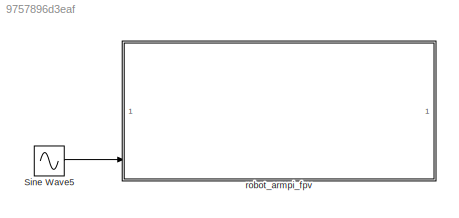
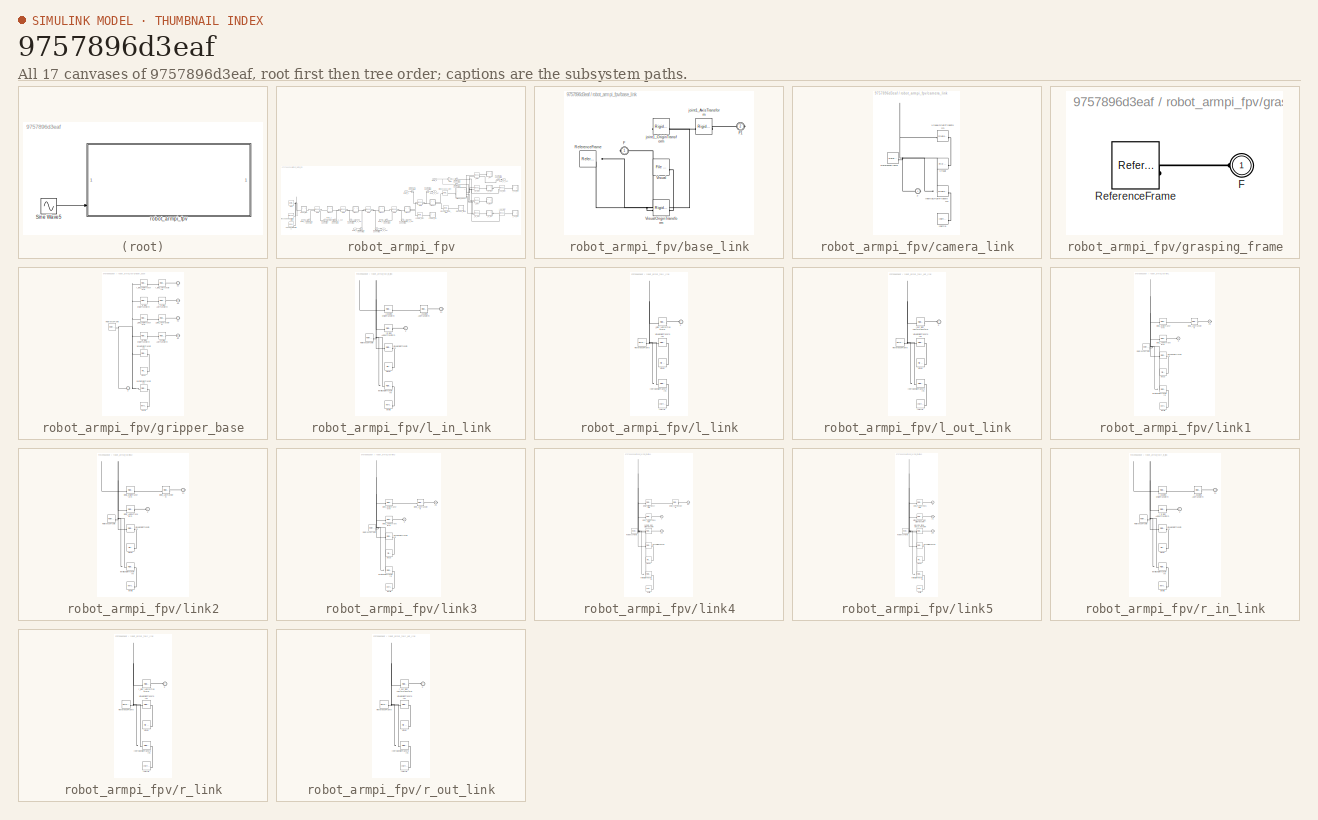
[diagram: thumbnail index - all 17 canvases of the model, root first then tree order]
MODEL slx_9757896d3eaf
KIND model
CONFIG AbsTol = auto
CONFIG EnableMultiTasking = off
CONFIG FixedStep = auto
CONFIG MaxStep = auto
CONFIG MinStep = auto
CONFIG RelTol = 1e-3
CONFIG SampleTimeConstraint = Unconstrained
CONFIG SolverName = VariableStepAuto
CONFIG StartTime = 0.0
CONFIG StopTime = 10.0
BLOCK [Sin] Sine Wave5
  Amplitude = .5*pi
  Frequency = .2*pi
  SampleTime = 0
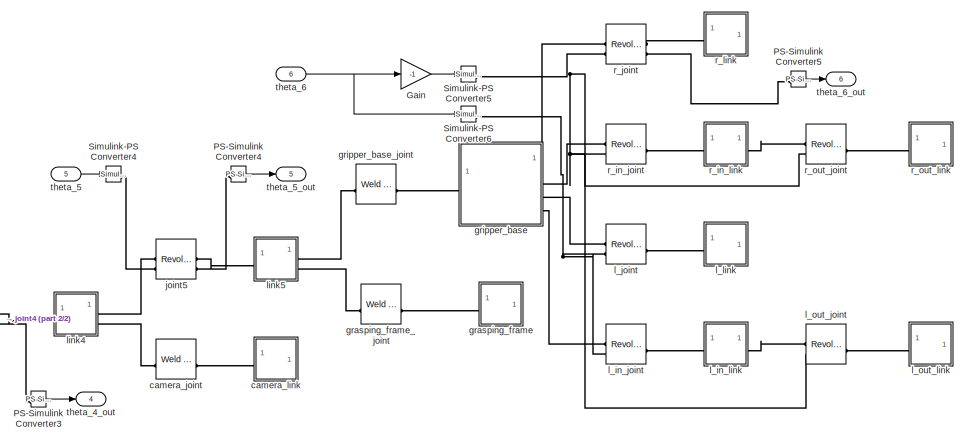
[diagram: robot_armpi_fpv - part 1/2, right side, full height]
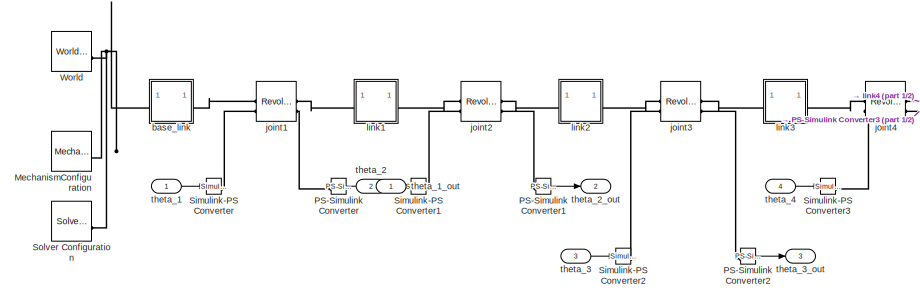
[diagram: robot_armpi_fpv - part 2/2, bottom left region]
BLOCK [SubSystem] robot_armpi_fpv
BLOCK [Gain] robot_armpi_fpv/Gain
  Gain = -1
BLOCK [Reference] robot_armpi_fpv/MechanismConfiguration  REF=sm_lib/Utilities/Mechanism
Configuration
  SourceBlock = sm_lib/Utilities/Mechanism\nConfiguration
  SourceType = Mechanism\nConfiguration
BLOCK [Reference] robot_armpi_fpv/PS-Simulink Converter  REF=nesl_utility/PS-Simulink
Converter
  SourceBlock = nesl_utility/PS-Simulink\nConverter
  SourceType = PS-Simulink\nConverter
BLOCK [Reference] robot_armpi_fpv/PS-Simulink Converter1  REF=nesl_utility/PS-Simulink
Converter
  SourceBlock = nesl_utility/PS-Simulink\nConverter
  SourceType = PS-Simulink\nConverter
BLOCK [Reference] robot_armpi_fpv/PS-Simulink Converter2  REF=nesl_utility/PS-Simulink
Converter
  SourceBlock = nesl_utility/PS-Simulink\nConverter
  SourceType = PS-Simulink\nConverter
BLOCK [Reference] robot_armpi_fpv/PS-Simulink Converter3  REF=nesl_utility/PS-Simulink
Converter
  SourceBlock = nesl_utility/PS-Simulink\nConverter
  SourceType = PS-Simulink\nConverter
BLOCK [Reference] robot_armpi_fpv/PS-Simulink Converter4  REF=nesl_utility/PS-Simulink
Converter
  SourceBlock = nesl_utility/PS-Simulink\nConverter
  SourceType = PS-Simulink\nConverter
BLOCK [Reference] robot_armpi_fpv/PS-Simulink Converter5  REF=nesl_utility/PS-Simulink
Converter
  SourceBlock = nesl_utility/PS-Simulink\nConverter
  SourceType = PS-Simulink\nConverter
BLOCK [Reference] robot_armpi_fpv/Simulink-PS Converter  REF=nesl_utility/Simulink-PS
Converter
  SourceBlock = nesl_utility/Simulink-PS\nConverter
  SourceType = Simulink-PS\nConverter
BLOCK [Reference] robot_armpi_fpv/Simulink-PS Converter1  REF=nesl_utility/Simulink-PS
Converter
  SourceBlock = nesl_utility/Simulink-PS\nConverter
  SourceType = Simulink-PS\nConverter
BLOCK [Reference] robot_armpi_fpv/Simulink-PS Converter2  REF=nesl_utility/Simulink-PS
Converter
  SourceBlock = nesl_utility/Simulink-PS\nConverter
  SourceType = Simulink-PS\nConverter
BLOCK [Reference] robot_armpi_fpv/Simulink-PS Converter3  REF=nesl_utility/Simulink-PS
Converter
  SourceBlock = nesl_utility/Simulink-PS\nConverter
  SourceType = Simulink-PS\nConverter
BLOCK [Reference] robot_armpi_fpv/Simulink-PS Converter4  REF=nesl_utility/Simulink-PS
Converter
  SourceBlock = nesl_utility/Simulink-PS\nConverter
  SourceType = Simulink-PS\nConverter
BLOCK [Reference] robot_armpi_fpv/Simulink-PS Converter5  REF=nesl_utility/Simulink-PS
Converter
  SourceBlock = nesl_utility/Simulink-PS\nConverter
  SourceType = Simulink-PS\nConverter
BLOCK [Reference] robot_armpi_fpv/Simulink-PS Converter6  REF=nesl_utility/Simulink-PS
Converter
  SourceBlock = nesl_utility/Simulink-PS\nConverter
  SourceType = Simulink-PS\nConverter
BLOCK [Reference] robot_armpi_fpv/Solver Configuration  REF=nesl_utility/Solver
Configuration
  SourceBlock = nesl_utility/Solver\nConfiguration
  SourceType = Solver\nConfiguration
BLOCK [Reference] robot_armpi_fpv/World  REF=sm_lib/Frames and
Transforms/World Frame
  SourceBlock = sm_lib/Frames and\nTransforms/World Frame
  SourceType = World Frame
BLOCK [SubSystem] robot_armpi_fpv/base_link
BLOCK [PMIOPort] robot_armpi_fpv/base_link/F
  Side = Left
BLOCK [PMIOPort] robot_armpi_fpv/base_link/F1
  Port = 2
  Side = Right
BLOCK [Reference] robot_armpi_fpv/base_link/ReferenceFrame  REF=sm_lib/Frames and
Transforms/Reference
Frame
  SourceBlock = sm_lib/Frames and\nTransforms/Reference\nFrame
  SourceType = Reference\nFrame
BLOCK [Reference] robot_armpi_fpv/base_link/Visual  REF=sm_lib/Body Elements/File Solid
  SourceBlock = sm_lib/Body Elements/File Solid
  SourceType = File Solid
BLOCK [Reference] robot_armpi_fpv/base_link/VisualOriginTransform  REF=sm_lib/Frames and
Transforms/Rigid
Transform
  SourceBlock = sm_lib/Frames and\nTransforms/Rigid\nTransform
  SourceType = Rigid\nTransform
BLOCK [Reference] robot_armpi_fpv/base_link/joint1_AxisTransform  REF=sm_lib/Frames and
Transforms/Rigid
Transform
  SourceBlock = sm_lib/Frames and\nTransforms/Rigid\nTransform
  SourceType = Rigid\nTransform
BLOCK [Reference] robot_armpi_fpv/base_link/joint1_OriginTransform  REF=sm_lib/Frames and
Transforms/Rigid
Transform
  SourceBlock = sm_lib/Frames and\nTransforms/Rigid\nTransform
  SourceType = Rigid\nTransform
BLOCK [Reference] robot_armpi_fpv/camera_joint  REF=sm_lib/Joints/Weld Joint
  SourceBlock = sm_lib/Joints/Weld Joint
  SourceType = Weld Joint
BLOCK [SubSystem] robot_armpi_fpv/camera_link
BLOCK [PMIOPort] robot_armpi_fpv/camera_link/F
  Side = Left
BLOCK [Reference] robot_armpi_fpv/camera_link/Inertia  REF=sm_lib/Body Elements/Inertia
  SourceBlock = sm_lib/Body Elements/Inertia
  SourceType = Inertia
BLOCK [Reference] robot_armpi_fpv/camera_link/InertiaOriginTransform  REF=sm_lib/Frames and
Transforms/Rigid
Transform
  SourceBlock = sm_lib/Frames and\nTransforms/Rigid\nTransform
  SourceType = Rigid\nTransform
BLOCK [Reference] robot_armpi_fpv/camera_link/ReferenceFrame  REF=sm_lib/Frames and
Transforms/Reference
Frame
  SourceBlock = sm_lib/Frames and\nTransforms/Reference\nFrame
  SourceType = Reference\nFrame
BLOCK [Reference] robot_armpi_fpv/camera_link/Visual  REF=sm_lib/Body Elements/File Solid
  SourceBlock = sm_lib/Body Elements/File Solid
  SourceType = File Solid
BLOCK [Reference] robot_armpi_fpv/camera_link/VisualOriginTransform  REF=sm_lib/Frames and
Transforms/Rigid
Transform
  SourceBlock = sm_lib/Frames and\nTransforms/Rigid\nTransform
  SourceType = Rigid\nTransform
BLOCK [SubSystem] robot_armpi_fpv/grasping_frame
BLOCK [PMIOPort] robot_armpi_fpv/grasping_frame/F
  Side = Left
BLOCK [Reference] robot_armpi_fpv/grasping_frame/ReferenceFrame  REF=sm_lib/Frames and
Transforms/Reference
Frame
  SourceBlock = sm_lib/Frames and\nTransforms/Reference\nFrame
  SourceType = Reference\nFrame
BLOCK [Reference] robot_armpi_fpv/grasping_frame_joint  REF=sm_lib/Joints/Weld Joint
  SourceBlock = sm_lib/Joints/Weld Joint
  SourceType = Weld Joint
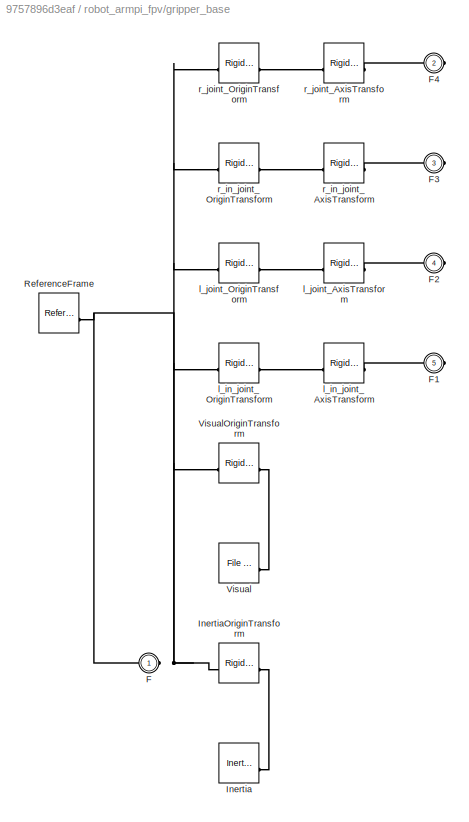
BLOCK [SubSystem] robot_armpi_fpv/gripper_base
BLOCK [PMIOPort] robot_armpi_fpv/gripper_base/F
  Side = Left
BLOCK [PMIOPort] robot_armpi_fpv/gripper_base/F1
  Port = 5
  Side = Right
BLOCK [PMIOPort] robot_armpi_fpv/gripper_base/F2
  Port = 4
  Side = Right
BLOCK [PMIOPort] robot_armpi_fpv/gripper_base/F3
  Port = 3
  Side = Right
BLOCK [PMIOPort] robot_armpi_fpv/gripper_base/F4
  Port = 2
  Side = Right
BLOCK [Reference] robot_armpi_fpv/gripper_base/Inertia  REF=sm_lib/Body Elements/Inertia
  SourceBlock = sm_lib/Body Elements/Inertia
  SourceType = Inertia
BLOCK [Reference] robot_armpi_fpv/gripper_base/InertiaOriginTransform  REF=sm_lib/Frames and
Transforms/Rigid
Transform
  SourceBlock = sm_lib/Frames and\nTransforms/Rigid\nTransform
  SourceType = Rigid\nTransform
BLOCK [Reference] robot_armpi_fpv/gripper_base/ReferenceFrame  REF=sm_lib/Frames and
Transforms/Reference
Frame
  SourceBlock = sm_lib/Frames and\nTransforms/Reference\nFrame
  SourceType = Reference\nFrame
BLOCK [Reference] robot_armpi_fpv/gripper_base/Visual  REF=sm_lib/Body Elements/File Solid
  SourceBlock = sm_lib/Body Elements/File Solid
  SourceType = File Solid
BLOCK [Reference] robot_armpi_fpv/gripper_base/VisualOriginTransform  REF=sm_lib/Frames and
Transforms/Rigid
Transform
  SourceBlock = sm_lib/Frames and\nTransforms/Rigid\nTransform
  SourceType = Rigid\nTransform
BLOCK [Reference] robot_armpi_fpv/gripper_base/l_in_joint_AxisTransform  REF=sm_lib/Frames and
Transforms/Rigid
Transform
  SourceBlock = sm_lib/Frames and\nTransforms/Rigid\nTransform
  SourceType = Rigid\nTransform
BLOCK [Reference] robot_armpi_fpv/gripper_base/l_in_joint_OriginTransform  REF=sm_lib/Frames and
Transforms/Rigid
Transform
  SourceBlock = sm_lib/Frames and\nTransforms/Rigid\nTransform
  SourceType = Rigid\nTransform
BLOCK [Reference] robot_armpi_fpv/gripper_base/l_joint_AxisTransform  REF=sm_lib/Frames and
Transforms/Rigid
Transform
  SourceBlock = sm_lib/Frames and\nTransforms/Rigid\nTransform
  SourceType = Rigid\nTransform
BLOCK [Reference] robot_armpi_fpv/gripper_base/l_joint_OriginTransform  REF=sm_lib/Frames and
Transforms/Rigid
Transform
  SourceBlock = sm_lib/Frames and\nTransforms/Rigid\nTransform
  SourceType = Rigid\nTransform
BLOCK [Reference] robot_armpi_fpv/gripper_base/r_in_joint_AxisTransform  REF=sm_lib/Frames and
Transforms/Rigid
Transform
  SourceBlock = sm_lib/Frames and\nTransforms/Rigid\nTransform
  SourceType = Rigid\nTransform
BLOCK [Reference] robot_armpi_fpv/gripper_base/r_in_joint_OriginTransform  REF=sm_lib/Frames and
Transforms/Rigid
Transform
  SourceBlock = sm_lib/Frames and\nTransforms/Rigid\nTransform
  SourceType = Rigid\nTransform
BLOCK [Reference] robot_armpi_fpv/gripper_base/r_joint_AxisTransform  REF=sm_lib/Frames and
Transforms/Rigid
Transform
  SourceBlock = sm_lib/Frames and\nTransforms/Rigid\nTransform
  SourceType = Rigid\nTransform
BLOCK [Reference] robot_armpi_fpv/gripper_base/r_joint_OriginTransform  REF=sm_lib/Frames and
Transforms/Rigid
Transform
  SourceBlock = sm_lib/Frames and\nTransforms/Rigid\nTransform
  SourceType = Rigid\nTransform
BLOCK [Reference] robot_armpi_fpv/gripper_base_joint  REF=sm_lib/Joints/Weld Joint
  SourceBlock = sm_lib/Joints/Weld Joint
  SourceType = Weld Joint
BLOCK [Reference] robot_armpi_fpv/joint1  REF=sm_lib/Joints/Revolute Joint
  SourceBlock = sm_lib/Joints/Revolute Joint
  SourceType = Revolute Joint
BLOCK [Reference] robot_armpi_fpv/joint2  REF=sm_lib/Joints/Revolute Joint
  SourceBlock = sm_lib/Joints/Revolute Joint
  SourceType = Revolute Joint
BLOCK [Reference] robot_armpi_fpv/joint3  REF=sm_lib/Joints/Revolute Joint
  SourceBlock = sm_lib/Joints/Revolute Joint
  SourceType = Revolute Joint
BLOCK [Reference] robot_armpi_fpv/joint4  REF=sm_lib/Joints/Revolute Joint
  SourceBlock = sm_lib/Joints/Revolute Joint
  SourceType = Revolute Joint
BLOCK [Reference] robot_armpi_fpv/joint5  REF=sm_lib/Joints/Revolute Joint
  SourceBlock = sm_lib/Joints/Revolute Joint
  SourceType = Revolute Joint
BLOCK [Reference] robot_armpi_fpv/l_in_joint  REF=sm_lib/Joints/Revolute Joint
  SourceBlock = sm_lib/Joints/Revolute Joint
  SourceType = Revolute Joint
BLOCK [SubSystem] robot_armpi_fpv/l_in_link
BLOCK [PMIOPort] robot_armpi_fpv/l_in_link/F
  Side = Left
BLOCK [PMIOPort] robot_armpi_fpv/l_in_link/F1
  Port = 2
  Side = Right
BLOCK [Reference] robot_armpi_fpv/l_in_link/Inertia  REF=sm_lib/Body Elements/Inertia
  SourceBlock = sm_lib/Body Elements/Inertia
  SourceType = Inertia
BLOCK [Reference] robot_armpi_fpv/l_in_link/InertiaOriginTransform  REF=sm_lib/Frames and
Transforms/Rigid
Transform
  SourceBlock = sm_lib/Frames and\nTransforms/Rigid\nTransform
  SourceType = Rigid\nTransform
BLOCK [Reference] robot_armpi_fpv/l_in_link/ReferenceFrame  REF=sm_lib/Frames and
Transforms/Reference
Frame
  SourceBlock = sm_lib/Frames and\nTransforms/Reference\nFrame
  SourceType = Reference\nFrame
BLOCK [Reference] robot_armpi_fpv/l_in_link/Visual  REF=sm_lib/Body Elements/File Solid
  SourceBlock = sm_lib/Body Elements/File Solid
  SourceType = File Solid
BLOCK [Reference] robot_armpi_fpv/l_in_link/VisualOriginTransform  REF=sm_lib/Frames and
Transforms/Rigid
Transform
  SourceBlock = sm_lib/Frames and\nTransforms/Rigid\nTransform
  SourceType = Rigid\nTransform
BLOCK [Reference] robot_armpi_fpv/l_in_link/l_in_joint_AxisInvTransform  REF=sm_lib/Frames and
Transforms/Rigid
Transform
  SourceBlock = sm_lib/Frames and\nTransforms/Rigid\nTransform
  SourceType = Rigid\nTransform
BLOCK [Reference] robot_armpi_fpv/l_in_link/l_out_joint_AxisTransform  REF=sm_lib/Frames and
Transforms/Rigid
Transform
  SourceBlock = sm_lib/Frames and\nTransforms/Rigid\nTransform
  SourceType = Rigid\nTransform
BLOCK [Reference] robot_armpi_fpv/l_in_link/l_out_joint_OriginTransform  REF=sm_lib/Frames and
Transforms/Rigid
Transform
  SourceBlock = sm_lib/Frames and\nTransforms/Rigid\nTransform
  SourceType = Rigid\nTransform
BLOCK [Reference] robot_armpi_fpv/l_joint  REF=sm_lib/Joints/Revolute Joint
  SourceBlock = sm_lib/Joints/Revolute Joint
  SourceType = Revolute Joint
BLOCK [SubSystem] robot_armpi_fpv/l_link
BLOCK [PMIOPort] robot_armpi_fpv/l_link/F
  Side = Left
BLOCK [Reference] robot_armpi_fpv/l_link/Inertia  REF=sm_lib/Body Elements/Inertia
  SourceBlock = sm_lib/Body Elements/Inertia
  SourceType = Inertia
BLOCK [Reference] robot_armpi_fpv/l_link/InertiaOriginTransform  REF=sm_lib/Frames and
Transforms/Rigid
Transform
  SourceBlock = sm_lib/Frames and\nTransforms/Rigid\nTransform
  SourceType = Rigid\nTransform
BLOCK [Reference] robot_armpi_fpv/l_link/ReferenceFrame  REF=sm_lib/Frames and
Transforms/Reference
Frame
  SourceBlock = sm_lib/Frames and\nTransforms/Reference\nFrame
  SourceType = Reference\nFrame
BLOCK [Reference] robot_armpi_fpv/l_link/Visual  REF=sm_lib/Body Elements/File Solid
  SourceBlock = sm_lib/Body Elements/File Solid
  SourceType = File Solid
BLOCK [Reference] robot_armpi_fpv/l_link/VisualOriginTransform  REF=sm_lib/Frames and
Transforms/Rigid
Transform
  SourceBlock = sm_lib/Frames and\nTransforms/Rigid\nTransform
  SourceType = Rigid\nTransform
BLOCK [Reference] robot_armpi_fpv/l_link/l_joint_AxisInvTransform  REF=sm_lib/Frames and
Transforms/Rigid
Transform
  SourceBlock = sm_lib/Frames and\nTransforms/Rigid\nTransform
  SourceType = Rigid\nTransform
BLOCK [Reference] robot_armpi_fpv/l_out_joint  REF=sm_lib/Joints/Revolute Joint
  SourceBlock = sm_lib/Joints/Revolute Joint
  SourceType = Revolute Joint
BLOCK [SubSystem] robot_armpi_fpv/l_out_link
BLOCK [PMIOPort] robot_armpi_fpv/l_out_link/F
  Side = Left
BLOCK [Reference] robot_armpi_fpv/l_out_link/Inertia  REF=sm_lib/Body Elements/Inertia
  SourceBlock = sm_lib/Body Elements/Inertia
  SourceType = Inertia
BLOCK [Reference] robot_armpi_fpv/l_out_link/InertiaOriginTransform  REF=sm_lib/Frames and
Transforms/Rigid
Transform
  SourceBlock = sm_lib/Frames and\nTransforms/Rigid\nTransform
  SourceType = Rigid\nTransform
BLOCK [Reference] robot_armpi_fpv/l_out_link/ReferenceFrame  REF=sm_lib/Frames and
Transforms/Reference
Frame
  SourceBlock = sm_lib/Frames and\nTransforms/Reference\nFrame
  SourceType = Reference\nFrame
BLOCK [Reference] robot_armpi_fpv/l_out_link/Visual  REF=sm_lib/Body Elements/File Solid
  SourceBlock = sm_lib/Body Elements/File Solid
  SourceType = File Solid
BLOCK [Reference] robot_armpi_fpv/l_out_link/VisualOriginTransform  REF=sm_lib/Frames and
Transforms/Rigid
Transform
  SourceBlock = sm_lib/Frames and\nTransforms/Rigid\nTransform
  SourceType = Rigid\nTransform
BLOCK [Reference] robot_armpi_fpv/l_out_link/l_out_joint_AxisInvTransform  REF=sm_lib/Frames and
Transforms/Rigid
Transform
  SourceBlock = sm_lib/Frames and\nTransforms/Rigid\nTransform
  SourceType = Rigid\nTransform
BLOCK [SubSystem] robot_armpi_fpv/link1
BLOCK [PMIOPort] robot_armpi_fpv/link1/F
  Side = Left
BLOCK [PMIOPort] robot_armpi_fpv/link1/F1
  Port = 2
  Side = Right
BLOCK [Reference] robot_armpi_fpv/link1/Inertia  REF=sm_lib/Body Elements/Inertia
  SourceBlock = sm_lib/Body Elements/Inertia
  SourceType = Inertia
BLOCK [Reference] robot_armpi_fpv/link1/InertiaOriginTransform  REF=sm_lib/Frames and
Transforms/Rigid
Transform
  SourceBlock = sm_lib/Frames and\nTransforms/Rigid\nTransform
  SourceType = Rigid\nTransform
BLOCK [Reference] robot_armpi_fpv/link1/ReferenceFrame  REF=sm_lib/Frames and
Transforms/Reference
Frame
  SourceBlock = sm_lib/Frames and\nTransforms/Reference\nFrame
  SourceType = Reference\nFrame
BLOCK [Reference] robot_armpi_fpv/link1/Visual  REF=sm_lib/Body Elements/File Solid
  SourceBlock = sm_lib/Body Elements/File Solid
  SourceType = File Solid
BLOCK [Reference] robot_armpi_fpv/link1/VisualOriginTransform  REF=sm_lib/Frames and
Transforms/Rigid
Transform
  SourceBlock = sm_lib/Frames and\nTransforms/Rigid\nTransform
  SourceType = Rigid\nTransform
BLOCK [Reference] robot_armpi_fpv/link1/joint1_AxisInvTransform  REF=sm_lib/Frames and
Transforms/Rigid
Transform
  SourceBlock = sm_lib/Frames and\nTransforms/Rigid\nTransform
  SourceType = Rigid\nTransform
BLOCK [Reference] robot_armpi_fpv/link1/joint2_AxisTransform  REF=sm_lib/Frames and
Transforms/Rigid
Transform
  SourceBlock = sm_lib/Frames and\nTransforms/Rigid\nTransform
  SourceType = Rigid\nTransform
BLOCK [Reference] robot_armpi_fpv/link1/joint2_OriginTransform  REF=sm_lib/Frames and
Transforms/Rigid
Transform
  SourceBlock = sm_lib/Frames and\nTransforms/Rigid\nTransform
  SourceType = Rigid\nTransform
BLOCK [SubSystem] robot_armpi_fpv/link2
BLOCK [PMIOPort] robot_armpi_fpv/link2/F
  Side = Left
BLOCK [PMIOPort] robot_armpi_fpv/link2/F1
  Port = 2
  Side = Right
BLOCK [Reference] robot_armpi_fpv/link2/Inertia  REF=sm_lib/Body Elements/Inertia
  SourceBlock = sm_lib/Body Elements/Inertia
  SourceType = Inertia
BLOCK [Reference] robot_armpi_fpv/link2/InertiaOriginTransform  REF=sm_lib/Frames and
Transforms/Rigid
Transform
  SourceBlock = sm_lib/Frames and\nTransforms/Rigid\nTransform
  SourceType = Rigid\nTransform
BLOCK [Reference] robot_armpi_fpv/link2/ReferenceFrame  REF=sm_lib/Frames and
Transforms/Reference
Frame
  SourceBlock = sm_lib/Frames and\nTransforms/Reference\nFrame
  SourceType = Reference\nFrame
BLOCK [Reference] robot_armpi_fpv/link2/Visual  REF=sm_lib/Body Elements/File Solid
  SourceBlock = sm_lib/Body Elements/File Solid
  SourceType = File Solid
BLOCK [Reference] robot_armpi_fpv/link2/VisualOriginTransform  REF=sm_lib/Frames and
Transforms/Rigid
Transform
  SourceBlock = sm_lib/Frames and\nTransforms/Rigid\nTransform
  SourceType = Rigid\nTransform
BLOCK [Reference] robot_armpi_fpv/link2/joint2_AxisInvTransform  REF=sm_lib/Frames and
Transforms/Rigid
Transform
  SourceBlock = sm_lib/Frames and\nTransforms/Rigid\nTransform
  SourceType = Rigid\nTransform
BLOCK [Reference] robot_armpi_fpv/link2/joint3_AxisTransform  REF=sm_lib/Frames and
Transforms/Rigid
Transform
  SourceBlock = sm_lib/Frames and\nTransforms/Rigid\nTransform
  SourceType = Rigid\nTransform
BLOCK [Reference] robot_armpi_fpv/link2/joint3_OriginTransform  REF=sm_lib/Frames and
Transforms/Rigid
Transform
  SourceBlock = sm_lib/Frames and\nTransforms/Rigid\nTransform
  SourceType = Rigid\nTransform
BLOCK [SubSystem] robot_armpi_fpv/link3
BLOCK [PMIOPort] robot_armpi_fpv/link3/F
  Side = Left
BLOCK [PMIOPort] robot_armpi_fpv/link3/F1
  Port = 2
  Side = Right
BLOCK [Reference] robot_armpi_fpv/link3/Inertia  REF=sm_lib/Body Elements/Inertia
  SourceBlock = sm_lib/Body Elements/Inertia
  SourceType = Inertia
BLOCK [Reference] robot_armpi_fpv/link3/InertiaOriginTransform  REF=sm_lib/Frames and
Transforms/Rigid
Transform
  SourceBlock = sm_lib/Frames and\nTransforms/Rigid\nTransform
  SourceType = Rigid\nTransform
BLOCK [Reference] robot_armpi_fpv/link3/ReferenceFrame  REF=sm_lib/Frames and
Transforms/Reference
Frame
  SourceBlock = sm_lib/Frames and\nTransforms/Reference\nFrame
  SourceType = Reference\nFrame
BLOCK [Reference] robot_armpi_fpv/link3/Visual  REF=sm_lib/Body Elements/File Solid
  SourceBlock = sm_lib/Body Elements/File Solid
  SourceType = File Solid
BLOCK [Reference] robot_armpi_fpv/link3/VisualOriginTransform  REF=sm_lib/Frames and
Transforms/Rigid
Transform
  SourceBlock = sm_lib/Frames and\nTransforms/Rigid\nTransform
  SourceType = Rigid\nTransform
BLOCK [Reference] robot_armpi_fpv/link3/joint3_AxisInvTransform  REF=sm_lib/Frames and
Transforms/Rigid
Transform
  SourceBlock = sm_lib/Frames and\nTransforms/Rigid\nTransform
  SourceType = Rigid\nTransform
BLOCK [Reference] robot_armpi_fpv/link3/joint4_AxisTransform  REF=sm_lib/Frames and
Transforms/Rigid
Transform
  SourceBlock = sm_lib/Frames and\nTransforms/Rigid\nTransform
  SourceType = Rigid\nTransform
BLOCK [Reference] robot_armpi_fpv/link3/joint4_OriginTransform  REF=sm_lib/Frames and
Transforms/Rigid
Transform
  SourceBlock = sm_lib/Frames and\nTransforms/Rigid\nTransform
  SourceType = Rigid\nTransform
BLOCK [SubSystem] robot_armpi_fpv/link4
BLOCK [PMIOPort] robot_armpi_fpv/link4/F
  Side = Left
BLOCK [PMIOPort] robot_armpi_fpv/link4/F1
  Port = 3
  Side = Right
BLOCK [PMIOPort] robot_armpi_fpv/link4/F2
  Port = 2
  Side = Right
BLOCK [Reference] robot_armpi_fpv/link4/Inertia  REF=sm_lib/Body Elements/Inertia
  SourceBlock = sm_lib/Body Elements/Inertia
  SourceType = Inertia
BLOCK [Reference] robot_armpi_fpv/link4/InertiaOriginTransform  REF=sm_lib/Frames and
Transforms/Rigid
Transform
  SourceBlock = sm_lib/Frames and\nTransforms/Rigid\nTransform
  SourceType = Rigid\nTransform
BLOCK [Reference] robot_armpi_fpv/link4/ReferenceFrame  REF=sm_lib/Frames and
Transforms/Reference
Frame
  SourceBlock = sm_lib/Frames and\nTransforms/Reference\nFrame
  SourceType = Reference\nFrame
BLOCK [Reference] robot_armpi_fpv/link4/Visual  REF=sm_lib/Body Elements/File Solid
  SourceBlock = sm_lib/Body Elements/File Solid
  SourceType = File Solid
BLOCK [Reference] robot_armpi_fpv/link4/VisualOriginTransform  REF=sm_lib/Frames and
Transforms/Rigid
Transform
  SourceBlock = sm_lib/Frames and\nTransforms/Rigid\nTransform
  SourceType = Rigid\nTransform
BLOCK [Reference] robot_armpi_fpv/link4/camera_joint_OriginTransform  REF=sm_lib/Frames and
Transforms/Rigid
Transform
  SourceBlock = sm_lib/Frames and\nTransforms/Rigid\nTransform
  SourceType = Rigid\nTransform
BLOCK [Reference] robot_armpi_fpv/link4/joint4_AxisInvTransform  REF=sm_lib/Frames and
Transforms/Rigid
Transform
  SourceBlock = sm_lib/Frames and\nTransforms/Rigid\nTransform
  SourceType = Rigid\nTransform
BLOCK [Reference] robot_armpi_fpv/link4/joint5_AxisTransform  REF=sm_lib/Frames and
Transforms/Rigid
Transform
  SourceBlock = sm_lib/Frames and\nTransforms/Rigid\nTransform
  SourceType = Rigid\nTransform
BLOCK [Reference] robot_armpi_fpv/link4/joint5_OriginTransform  REF=sm_lib/Frames and
Transforms/Rigid
Transform
  SourceBlock = sm_lib/Frames and\nTransforms/Rigid\nTransform
  SourceType = Rigid\nTransform
BLOCK [SubSystem] robot_armpi_fpv/link5
BLOCK [PMIOPort] robot_armpi_fpv/link5/F
  Side = Left
BLOCK [PMIOPort] robot_armpi_fpv/link5/F1
  Port = 3
  Side = Right
BLOCK [PMIOPort] robot_armpi_fpv/link5/F2
  Port = 2
  Side = Right
BLOCK [Reference] robot_armpi_fpv/link5/Inertia  REF=sm_lib/Body Elements/Inertia
  SourceBlock = sm_lib/Body Elements/Inertia
  SourceType = Inertia
BLOCK [Reference] robot_armpi_fpv/link5/InertiaOriginTransform  REF=sm_lib/Frames and
Transforms/Rigid
Transform
  SourceBlock = sm_lib/Frames and\nTransforms/Rigid\nTransform
  SourceType = Rigid\nTransform
BLOCK [Reference] robot_armpi_fpv/link5/ReferenceFrame  REF=sm_lib/Frames and
Transforms/Reference
Frame
  SourceBlock = sm_lib/Frames and\nTransforms/Reference\nFrame
  SourceType = Reference\nFrame
BLOCK [Reference] robot_armpi_fpv/link5/Visual  REF=sm_lib/Body Elements/File Solid
  SourceBlock = sm_lib/Body Elements/File Solid
  SourceType = File Solid
BLOCK [Reference] robot_armpi_fpv/link5/VisualOriginTransform  REF=sm_lib/Frames and
Transforms/Rigid
Transform
  SourceBlock = sm_lib/Frames and\nTransforms/Rigid\nTransform
  SourceType = Rigid\nTransform
BLOCK [Reference] robot_armpi_fpv/link5/grasping_frame_joint_OriginTransform  REF=sm_lib/Frames and
Transforms/Rigid
Transform
  SourceBlock = sm_lib/Frames and\nTransforms/Rigid\nTransform
  SourceType = Rigid\nTransform
BLOCK [Reference] robot_armpi_fpv/link5/gripper_base_joint_OriginTransform  REF=sm_lib/Frames and
Transforms/Rigid
Transform
  SourceBlock = sm_lib/Frames and\nTransforms/Rigid\nTransform
  SourceType = Rigid\nTransform
BLOCK [Reference] robot_armpi_fpv/link5/joint5_AxisInvTransform  REF=sm_lib/Frames and
Transforms/Rigid
Transform
  SourceBlock = sm_lib/Frames and\nTransforms/Rigid\nTransform
  SourceType = Rigid\nTransform
BLOCK [Reference] robot_armpi_fpv/r_in_joint  REF=sm_lib/Joints/Revolute Joint
  SourceBlock = sm_lib/Joints/Revolute Joint
  SourceType = Revolute Joint
BLOCK [SubSystem] robot_armpi_fpv/r_in_link
BLOCK [PMIOPort] robot_armpi_fpv/r_in_link/F
  Side = Left
BLOCK [PMIOPort] robot_armpi_fpv/r_in_link/F1
  Port = 2
  Side = Right
BLOCK [Reference] robot_armpi_fpv/r_in_link/Inertia  REF=sm_lib/Body Elements/Inertia
  SourceBlock = sm_lib/Body Elements/Inertia
  SourceType = Inertia
BLOCK [Reference] robot_armpi_fpv/r_in_link/InertiaOriginTransform  REF=sm_lib/Frames and
Transforms/Rigid
Transform
  SourceBlock = sm_lib/Frames and\nTransforms/Rigid\nTransform
  SourceType = Rigid\nTransform
BLOCK [Reference] robot_armpi_fpv/r_in_link/ReferenceFrame  REF=sm_lib/Frames and
Transforms/Reference
Frame
  SourceBlock = sm_lib/Frames and\nTransforms/Reference\nFrame
  SourceType = Reference\nFrame
BLOCK [Reference] robot_armpi_fpv/r_in_link/Visual  REF=sm_lib/Body Elements/File Solid
  SourceBlock = sm_lib/Body Elements/File Solid
  SourceType = File Solid
BLOCK [Reference] robot_armpi_fpv/r_in_link/VisualOriginTransform  REF=sm_lib/Frames and
Transforms/Rigid
Transform
  SourceBlock = sm_lib/Frames and\nTransforms/Rigid\nTransform
  SourceType = Rigid\nTransform
BLOCK [Reference] robot_armpi_fpv/r_in_link/r_in_joint_AxisInvTransform  REF=sm_lib/Frames and
Transforms/Rigid
Transform
  SourceBlock = sm_lib/Frames and\nTransforms/Rigid\nTransform
  SourceType = Rigid\nTransform
BLOCK [Reference] robot_armpi_fpv/r_in_link/r_out_joint_AxisTransform  REF=sm_lib/Frames and
Transforms/Rigid
Transform
  SourceBlock = sm_lib/Frames and\nTransforms/Rigid\nTransform
  SourceType = Rigid\nTransform
BLOCK [Reference] robot_armpi_fpv/r_in_link/r_out_joint_OriginTransform  REF=sm_lib/Frames and
Transforms/Rigid
Transform
  SourceBlock = sm_lib/Frames and\nTransforms/Rigid\nTransform
  SourceType = Rigid\nTransform
BLOCK [Reference] robot_armpi_fpv/r_joint  REF=sm_lib/Joints/Revolute Joint
  SourceBlock = sm_lib/Joints/Revolute Joint
  SourceType = Revolute Joint
BLOCK [SubSystem] robot_armpi_fpv/r_link
BLOCK [PMIOPort] robot_armpi_fpv/r_link/F
  Side = Left
BLOCK [Reference] robot_armpi_fpv/r_link/Inertia  REF=sm_lib/Body Elements/Inertia
  SourceBlock = sm_lib/Body Elements/Inertia
  SourceType = Inertia
BLOCK [Reference] robot_armpi_fpv/r_link/InertiaOriginTransform  REF=sm_lib/Frames and
Transforms/Rigid
Transform
  SourceBlock = sm_lib/Frames and\nTransforms/Rigid\nTransform
  SourceType = Rigid\nTransform
BLOCK [Reference] robot_armpi_fpv/r_link/ReferenceFrame  REF=sm_lib/Frames and
Transforms/Reference
Frame
  SourceBlock = sm_lib/Frames and\nTransforms/Reference\nFrame
  SourceType = Reference\nFrame
BLOCK [Reference] robot_armpi_fpv/r_link/Visual  REF=sm_lib/Body Elements/File Solid
  SourceBlock = sm_lib/Body Elements/File Solid
  SourceType = File Solid
BLOCK [Reference] robot_armpi_fpv/r_link/VisualOriginTransform  REF=sm_lib/Frames and
Transforms/Rigid
Transform
  SourceBlock = sm_lib/Frames and\nTransforms/Rigid\nTransform
  SourceType = Rigid\nTransform
BLOCK [Reference] robot_armpi_fpv/r_link/r_joint_AxisInvTransform  REF=sm_lib/Frames and
Transforms/Rigid
Transform
  SourceBlock = sm_lib/Frames and\nTransforms/Rigid\nTransform
  SourceType = Rigid\nTransform
BLOCK [Reference] robot_armpi_fpv/r_out_joint  REF=sm_lib/Joints/Revolute Joint
  SourceBlock = sm_lib/Joints/Revolute Joint
  SourceType = Revolute Joint
BLOCK [SubSystem] robot_armpi_fpv/r_out_link
BLOCK [PMIOPort] robot_armpi_fpv/r_out_link/F
  Side = Left
BLOCK [Reference] robot_armpi_fpv/r_out_link/Inertia  REF=sm_lib/Body Elements/Inertia
  SourceBlock = sm_lib/Body Elements/Inertia
  SourceType = Inertia
BLOCK [Reference] robot_armpi_fpv/r_out_link/InertiaOriginTransform  REF=sm_lib/Frames and
Transforms/Rigid
Transform
  SourceBlock = sm_lib/Frames and\nTransforms/Rigid\nTransform
  SourceType = Rigid\nTransform
BLOCK [Reference] robot_armpi_fpv/r_out_link/ReferenceFrame  REF=sm_lib/Frames and
Transforms/Reference
Frame
  SourceBlock = sm_lib/Frames and\nTransforms/Reference\nFrame
  SourceType = Reference\nFrame
BLOCK [Reference] robot_armpi_fpv/r_out_link/Visual  REF=sm_lib/Body Elements/File Solid
  SourceBlock = sm_lib/Body Elements/File Solid
  SourceType = File Solid
BLOCK [Reference] robot_armpi_fpv/r_out_link/VisualOriginTransform  REF=sm_lib/Frames and
Transforms/Rigid
Transform
  SourceBlock = sm_lib/Frames and\nTransforms/Rigid\nTransform
  SourceType = Rigid\nTransform
BLOCK [Reference] robot_armpi_fpv/r_out_link/r_out_joint_AxisInvTransform  REF=sm_lib/Frames and
Transforms/Rigid
Transform
  SourceBlock = sm_lib/Frames and\nTransforms/Rigid\nTransform
  SourceType = Rigid\nTransform
BLOCK [Inport] robot_armpi_fpv/theta_1
BLOCK [Outport] robot_armpi_fpv/theta_1_out
BLOCK [Inport] robot_armpi_fpv/theta_2
  Port = 2
BLOCK [Outport] robot_armpi_fpv/theta_2_out
  Port = 2
BLOCK [Inport] robot_armpi_fpv/theta_3
  Port = 3
BLOCK [Outport] robot_armpi_fpv/theta_3_out
  Port = 3
BLOCK [Inport] robot_armpi_fpv/theta_4
  Port = 4
BLOCK [Outport] robot_armpi_fpv/theta_4_out
  Port = 4
BLOCK [Inport] robot_armpi_fpv/theta_5
  Port = 5
BLOCK [Outport] robot_armpi_fpv/theta_5_out
  Port = 5
BLOCK [Inport] robot_armpi_fpv/theta_6
  Port = 6
BLOCK [Outport] robot_armpi_fpv/theta_6_out
  Port = 6
LINE Sine Wave5:1 -> robot_armpi_fpv:6
LINE robot_armpi_fpv/Gain:1 -> robot_armpi_fpv/Simulink-PS Converter5:1
LINE robot_armpi_fpv/PS-Simulink Converter1:1 -> robot_armpi_fpv/theta_2_out:1
LINE robot_armpi_fpv/PS-Simulink Converter2:1 -> robot_armpi_fpv/theta_3_out:1
LINE robot_armpi_fpv/PS-Simulink Converter3:1 -> robot_armpi_fpv/theta_4_out:1
LINE robot_armpi_fpv/PS-Simulink Converter4:1 -> robot_armpi_fpv/theta_5_out:1
LINE robot_armpi_fpv/PS-Simulink Converter5:1 -> robot_armpi_fpv/theta_6_out:1
LINE robot_armpi_fpv/PS-Simulink Converter:1 -> robot_armpi_fpv/theta_1_out:1
LINE robot_armpi_fpv/theta_1:1 -> robot_armpi_fpv/Simulink-PS Converter:1
LINE robot_armpi_fpv/theta_2:1 -> robot_armpi_fpv/Simulink-PS Converter1:1
LINE robot_armpi_fpv/theta_3:1 -> robot_armpi_fpv/Simulink-PS Converter2:1
LINE robot_armpi_fpv/theta_4:1 -> robot_armpi_fpv/Simulink-PS Converter3:1
LINE robot_armpi_fpv/theta_5:1 -> robot_armpi_fpv/Simulink-PS Converter4:1
NET robot_armpi_fpv/theta_6:1 -> robot_armpi_fpv/Gain:1, robot_armpi_fpv/Simulink-PS Converter6:1
PNET net1: robot_armpi_fpv/MechanismConfiguration:RConn1 -- robot_armpi_fpv/Solver Configuration:RConn1 -- robot_armpi_fpv/World:RConn1 -- robot_armpi_fpv/base_link:LConn1
PLINE robot_armpi_fpv/PS-Simulink Converter1:LConn1 -- robot_armpi_fpv/joint2:RConn2
PLINE robot_armpi_fpv/PS-Simulink Converter2:LConn1 -- robot_armpi_fpv/joint3:RConn2
PLINE robot_armpi_fpv/PS-Simulink Converter3:LConn1 -- robot_armpi_fpv/joint4:RConn2
PLINE robot_armpi_fpv/PS-Simulink Converter4:LConn1 -- robot_armpi_fpv/joint5:RConn2
PLINE robot_armpi_fpv/PS-Simulink Converter5:LConn1 -- robot_armpi_fpv/r_joint:RConn2
PLINE robot_armpi_fpv/PS-Simulink Converter:LConn1 -- robot_armpi_fpv/joint1:RConn2
PLINE robot_armpi_fpv/Simulink-PS Converter1:RConn1 -- robot_armpi_fpv/joint2:LConn2
PLINE robot_armpi_fpv/Simulink-PS Converter2:RConn1 -- robot_armpi_fpv/joint3:LConn2
PLINE robot_armpi_fpv/Simulink-PS Converter3:RConn1 -- robot_armpi_fpv/joint4:LConn2
PLINE robot_armpi_fpv/Simulink-PS Converter4:RConn1 -- robot_armpi_fpv/joint5:LConn2
PNET net2: robot_armpi_fpv/Simulink-PS Converter5:RConn1 -- robot_armpi_fpv/l_out_joint:LConn2 -- robot_armpi_fpv/r_in_joint:LConn2 -- robot_armpi_fpv/r_joint:LConn2 -- robot_armpi_fpv/r_out_joint:LConn2
PNET net3: robot_armpi_fpv/Simulink-PS Converter6:RConn1 -- robot_armpi_fpv/l_in_joint:LConn2 -- robot_armpi_fpv/l_joint:LConn2
PLINE robot_armpi_fpv/Simulink-PS Converter:RConn1 -- robot_armpi_fpv/joint1:LConn2
PLINE robot_armpi_fpv/base_link/F1:RConn1 -- robot_armpi_fpv/base_link/joint1_AxisTransform:RConn1
PNET net4: robot_armpi_fpv/base_link/F:RConn1 -- robot_armpi_fpv/base_link/ReferenceFrame:RConn1 -- robot_armpi_fpv/base_link/VisualOriginTransform:LConn1 -- robot_armpi_fpv/base_link/joint1_OriginTransform:LConn1
PLINE robot_armpi_fpv/base_link/Visual:RConn1 -- robot_armpi_fpv/base_link/VisualOriginTransform:RConn1
PLINE robot_armpi_fpv/base_link/joint1_AxisTransform:LConn1 -- robot_armpi_fpv/base_link/joint1_OriginTransform:RConn1
PLINE robot_armpi_fpv/base_link:RConn1 -- robot_armpi_fpv/joint1:LConn1
PLINE robot_armpi_fpv/camera_joint:LConn1 -- robot_armpi_fpv/link4:RConn2
PLINE robot_armpi_fpv/camera_joint:RConn1 -- robot_armpi_fpv/camera_link:LConn1
PNET net5: robot_armpi_fpv/camera_link/F:RConn1 -- robot_armpi_fpv/camera_link/InertiaOriginTransform:LConn1 -- robot_armpi_fpv/camera_link/ReferenceFrame:RConn1 -- robot_armpi_fpv/camera_link/VisualOriginTransform:LConn1
PLINE robot_armpi_fpv/camera_link/Inertia:RConn1 -- robot_armpi_fpv/camera_link/InertiaOriginTransform:RConn1
PLINE robot_armpi_fpv/camera_link/Visual:RConn1 -- robot_armpi_fpv/camera_link/VisualOriginTransform:RConn1
PLINE robot_armpi_fpv/grasping_frame/F:RConn1 -- robot_armpi_fpv/grasping_frame/ReferenceFrame:RConn1
PLINE robot_armpi_fpv/grasping_frame:LConn1 -- robot_armpi_fpv/grasping_frame_joint:RConn1
PLINE robot_armpi_fpv/grasping_frame_joint:LConn1 -- robot_armpi_fpv/link5:RConn2
PLINE robot_armpi_fpv/gripper_base/F1:RConn1 -- robot_armpi_fpv/gripper_base/l_in_joint_AxisTransform:RConn1
PLINE robot_armpi_fpv/gripper_base/F2:RConn1 -- robot_armpi_fpv/gripper_base/l_joint_AxisTransform:RConn1
PLINE robot_armpi_fpv/gripper_base/F3:RConn1 -- robot_armpi_fpv/gripper_base/r_in_joint_AxisTransform:RConn1
PLINE robot_armpi_fpv/gripper_base/F4:RConn1 -- robot_armpi_fpv/gripper_base/r_joint_AxisTransform:RConn1
PNET net6: robot_armpi_fpv/gripper_base/F:RConn1 -- robot_armpi_fpv/gripper_base/InertiaOriginTransform:LConn1 -- robot_armpi_fpv/gripper_base/ReferenceFrame:RConn1 -- robot_armpi_fpv/gripper_base/VisualOriginTransform:LConn1 -- robot_armpi_fpv/gripper_base/l_in_joint_OriginTransform:LConn1 -- robot_armpi_fpv/gripper_base/l_joint_OriginTransform:LConn1 -- robot_armpi_fpv/gripper_base/r_in_joint_OriginTransform:LConn1 -- robot_armpi_fpv/gripper_base/r_joint_OriginTransform:LConn1
PLINE robot_armpi_fpv/gripper_base/Inertia:RConn1 -- robot_armpi_fpv/gripper_base/InertiaOriginTransform:RConn1
PLINE robot_armpi_fpv/gripper_base/Visual:RConn1 -- robot_armpi_fpv/gripper_base/VisualOriginTransform:RConn1
PLINE robot_armpi_fpv/gripper_base/l_in_joint_AxisTransform:LConn1 -- robot_armpi_fpv/gripper_base/l_in_joint_OriginTransform:RConn1
PLINE robot_armpi_fpv/gripper_base/l_joint_AxisTransform:LConn1 -- robot_armpi_fpv/gripper_base/l_joint_OriginTransform:RConn1
PLINE robot_armpi_fpv/gripper_base/r_in_joint_AxisTransform:LConn1 -- robot_armpi_fpv/gripper_base/r_in_joint_OriginTransform:RConn1
PLINE robot_armpi_fpv/gripper_base/r_joint_AxisTransform:LConn1 -- robot_armpi_fpv/gripper_base/r_joint_OriginTransform:RConn1
PLINE robot_armpi_fpv/gripper_base:LConn1 -- robot_armpi_fpv/gripper_base_joint:RConn1
PLINE robot_armpi_fpv/gripper_base:RConn1 -- robot_armpi_fpv/r_joint:LConn1
PLINE robot_armpi_fpv/gripper_base:RConn2 -- robot_armpi_fpv/r_in_joint:LConn1
PLINE robot_armpi_fpv/gripper_base:RConn3 -- robot_armpi_fpv/l_joint:LConn1
PLINE robot_armpi_fpv/gripper_base:RConn4 -- robot_armpi_fpv/l_in_joint:LConn1
PLINE robot_armpi_fpv/gripper_base_joint:LConn1 -- robot_armpi_fpv/link5:RConn1
PLINE robot_armpi_fpv/joint1:RConn1 -- robot_armpi_fpv/link1:LConn1
PLINE robot_armpi_fpv/joint2:LConn1 -- robot_armpi_fpv/link1:RConn1
PLINE robot_armpi_fpv/joint2:RConn1 -- robot_armpi_fpv/link2:LConn1
PLINE robot_armpi_fpv/joint3:LConn1 -- robot_armpi_fpv/link2:RConn1
PLINE robot_armpi_fpv/joint3:RConn1 -- robot_armpi_fpv/link3:LConn1
PLINE robot_armpi_fpv/joint4:LConn1 -- robot_armpi_fpv/link3:RConn1
PLINE robot_armpi_fpv/joint4:RConn1 -- robot_armpi_fpv/link4:LConn1
PLINE robot_armpi_fpv/joint5:LConn1 -- robot_armpi_fpv/link4:RConn1
PLINE robot_armpi_fpv/joint5:RConn1 -- robot_armpi_fpv/link5:LConn1
PLINE robot_armpi_fpv/l_in_joint:RConn1 -- robot_armpi_fpv/l_in_link:LConn1
PLINE robot_armpi_fpv/l_in_link/F1:RConn1 -- robot_armpi_fpv/l_in_link/l_out_joint_AxisTransform:RConn1
PLINE robot_armpi_fpv/l_in_link/F:RConn1 -- robot_armpi_fpv/l_in_link/l_in_joint_AxisInvTransform:RConn1
PLINE robot_armpi_fpv/l_in_link/Inertia:RConn1 -- robot_armpi_fpv/l_in_link/InertiaOriginTransform:RConn1
PNET net7: robot_armpi_fpv/l_in_link/InertiaOriginTransform:LConn1 -- robot_armpi_fpv/l_in_link/ReferenceFrame:RConn1 -- robot_armpi_fpv/l_in_link/VisualOriginTransform:LConn1 -- robot_armpi_fpv/l_in_link/l_in_joint_AxisInvTransform:LConn1 -- robot_armpi_fpv/l_in_link/l_out_joint_OriginTransform:LConn1
PLINE robot_armpi_fpv/l_in_link/Visual:RConn1 -- robot_armpi_fpv/l_in_link/VisualOriginTransform:RConn1
PLINE robot_armpi_fpv/l_in_link/l_out_joint_AxisTransform:LConn1 -- robot_armpi_fpv/l_in_link/l_out_joint_OriginTransform:RConn1
PLINE robot_armpi_fpv/l_in_link:RConn1 -- robot_armpi_fpv/l_out_joint:LConn1
PLINE robot_armpi_fpv/l_joint:RConn1 -- robot_armpi_fpv/l_link:LConn1
PLINE robot_armpi_fpv/l_link/F:RConn1 -- robot_armpi_fpv/l_link/l_joint_AxisInvTransform:RConn1
PLINE robot_armpi_fpv/l_link/Inertia:RConn1 -- robot_armpi_fpv/l_link/InertiaOriginTransform:RConn1
PNET net8: robot_armpi_fpv/l_link/InertiaOriginTransform:LConn1 -- robot_armpi_fpv/l_link/ReferenceFrame:RConn1 -- robot_armpi_fpv/l_link/VisualOriginTransform:LConn1 -- robot_armpi_fpv/l_link/l_joint_AxisInvTransform:LConn1
PLINE robot_armpi_fpv/l_link/Visual:RConn1 -- robot_armpi_fpv/l_link/VisualOriginTransform:RConn1
PLINE robot_armpi_fpv/l_out_joint:RConn1 -- robot_armpi_fpv/l_out_link:LConn1
PLINE robot_armpi_fpv/l_out_link/F:RConn1 -- robot_armpi_fpv/l_out_link/l_out_joint_AxisInvTransform:RConn1
PLINE robot_armpi_fpv/l_out_link/Inertia:RConn1 -- robot_armpi_fpv/l_out_link/InertiaOriginTransform:RConn1
PNET net9: robot_armpi_fpv/l_out_link/InertiaOriginTransform:LConn1 -- robot_armpi_fpv/l_out_link/ReferenceFrame:RConn1 -- robot_armpi_fpv/l_out_link/VisualOriginTransform:LConn1 -- robot_armpi_fpv/l_out_link/l_out_joint_AxisInvTransform:LConn1
PLINE robot_armpi_fpv/l_out_link/Visual:RConn1 -- robot_armpi_fpv/l_out_link/VisualOriginTransform:RConn1
PLINE robot_armpi_fpv/link1/F1:RConn1 -- robot_armpi_fpv/link1/joint2_AxisTransform:RConn1
PLINE robot_armpi_fpv/link1/F:RConn1 -- robot_armpi_fpv/link1/joint1_AxisInvTransform:RConn1
PLINE robot_armpi_fpv/link1/Inertia:RConn1 -- robot_armpi_fpv/link1/InertiaOriginTransform:RConn1
PNET net10: robot_armpi_fpv/link1/InertiaOriginTransform:LConn1 -- robot_armpi_fpv/link1/ReferenceFrame:RConn1 -- robot_armpi_fpv/link1/VisualOriginTransform:LConn1 -- robot_armpi_fpv/link1/joint1_AxisInvTransform:LConn1 -- robot_armpi_fpv/link1/joint2_OriginTransform:LConn1
PLINE robot_armpi_fpv/link1/Visual:RConn1 -- robot_armpi_fpv/link1/VisualOriginTransform:RConn1
PLINE robot_armpi_fpv/link1/joint2_AxisTransform:LConn1 -- robot_armpi_fpv/link1/joint2_OriginTransform:RConn1
PLINE robot_armpi_fpv/link2/F1:RConn1 -- robot_armpi_fpv/link2/joint3_AxisTransform:RConn1
PLINE robot_armpi_fpv/link2/F:RConn1 -- robot_armpi_fpv/link2/joint2_AxisInvTransform:RConn1
PLINE robot_armpi_fpv/link2/Inertia:RConn1 -- robot_armpi_fpv/link2/InertiaOriginTransform:RConn1
PNET net11: robot_armpi_fpv/link2/InertiaOriginTransform:LConn1 -- robot_armpi_fpv/link2/ReferenceFrame:RConn1 -- robot_armpi_fpv/link2/VisualOriginTransform:LConn1 -- robot_armpi_fpv/link2/joint2_AxisInvTransform:LConn1 -- robot_armpi_fpv/link2/joint3_OriginTransform:LConn1
PLINE robot_armpi_fpv/link2/Visual:RConn1 -- robot_armpi_fpv/link2/VisualOriginTransform:RConn1
PLINE robot_armpi_fpv/link2/joint3_AxisTransform:LConn1 -- robot_armpi_fpv/link2/joint3_OriginTransform:RConn1
PLINE robot_armpi_fpv/link3/F1:RConn1 -- robot_armpi_fpv/link3/joint4_AxisTransform:RConn1
PLINE robot_armpi_fpv/link3/F:RConn1 -- robot_armpi_fpv/link3/joint3_AxisInvTransform:RConn1
PLINE robot_armpi_fpv/link3/Inertia:RConn1 -- robot_armpi_fpv/link3/InertiaOriginTransform:RConn1
PNET net12: robot_armpi_fpv/link3/InertiaOriginTransform:LConn1 -- robot_armpi_fpv/link3/ReferenceFrame:RConn1 -- robot_armpi_fpv/link3/VisualOriginTransform:LConn1 -- robot_armpi_fpv/link3/joint3_AxisInvTransform:LConn1 -- robot_armpi_fpv/link3/joint4_OriginTransform:LConn1
PLINE robot_armpi_fpv/link3/Visual:RConn1 -- robot_armpi_fpv/link3/VisualOriginTransform:RConn1
PLINE robot_armpi_fpv/link3/joint4_AxisTransform:LConn1 -- robot_armpi_fpv/link3/joint4_OriginTransform:RConn1
PLINE robot_armpi_fpv/link4/F1:RConn1 -- robot_armpi_fpv/link4/camera_joint_OriginTransform:RConn1
PLINE robot_armpi_fpv/link4/F2:RConn1 -- robot_armpi_fpv/link4/joint5_AxisTransform:RConn1
PLINE robot_armpi_fpv/link4/F:RConn1 -- robot_armpi_fpv/link4/joint4_AxisInvTransform:RConn1
PLINE robot_armpi_fpv/link4/Inertia:RConn1 -- robot_armpi_fpv/link4/InertiaOriginTransform:RConn1
PNET net13: robot_armpi_fpv/link4/InertiaOriginTransform:LConn1 -- robot_armpi_fpv/link4/ReferenceFrame:RConn1 -- robot_armpi_fpv/link4/VisualOriginTransform:LConn1 -- robot_armpi_fpv/link4/camera_joint_OriginTransform:LConn1 -- robot_armpi_fpv/link4/joint4_AxisInvTransform:LConn1 -- robot_armpi_fpv/link4/joint5_OriginTransform:LConn1
PLINE robot_armpi_fpv/link4/Visual:RConn1 -- robot_armpi_fpv/link4/VisualOriginTransform:RConn1
PLINE robot_armpi_fpv/link4/joint5_AxisTransform:LConn1 -- robot_armpi_fpv/link4/joint5_OriginTransform:RConn1
PLINE robot_armpi_fpv/link5/F1:RConn1 -- robot_armpi_fpv/link5/grasping_frame_joint_OriginTransform:RConn1
PLINE robot_armpi_fpv/link5/F2:RConn1 -- robot_armpi_fpv/link5/gripper_base_joint_OriginTransform:RConn1
PLINE robot_armpi_fpv/link5/F:RConn1 -- robot_armpi_fpv/link5/joint5_AxisInvTransform:RConn1
PLINE robot_armpi_fpv/link5/Inertia:RConn1 -- robot_armpi_fpv/link5/InertiaOriginTransform:RConn1
PNET net14: robot_armpi_fpv/link5/InertiaOriginTransform:LConn1 -- robot_armpi_fpv/link5/ReferenceFrame:RConn1 -- robot_armpi_fpv/link5/VisualOriginTransform:LConn1 -- robot_armpi_fpv/link5/grasping_frame_joint_OriginTransform:LConn1 -- robot_armpi_fpv/link5/gripper_base_joint_OriginTransform:LConn1 -- robot_armpi_fpv/link5/joint5_AxisInvTransform:LConn1
PLINE robot_armpi_fpv/link5/Visual:RConn1 -- robot_armpi_fpv/link5/VisualOriginTransform:RConn1
PLINE robot_armpi_fpv/r_in_joint:RConn1 -- robot_armpi_fpv/r_in_link:LConn1
PLINE robot_armpi_fpv/r_in_link/F1:RConn1 -- robot_armpi_fpv/r_in_link/r_out_joint_AxisTransform:RConn1
PLINE robot_armpi_fpv/r_in_link/F:RConn1 -- robot_armpi_fpv/r_in_link/r_in_joint_AxisInvTransform:RConn1
PLINE robot_armpi_fpv/r_in_link/Inertia:RConn1 -- robot_armpi_fpv/r_in_link/InertiaOriginTransform:RConn1
PNET net15: robot_armpi_fpv/r_in_link/InertiaOriginTransform:LConn1 -- robot_armpi_fpv/r_in_link/ReferenceFrame:RConn1 -- robot_armpi_fpv/r_in_link/VisualOriginTransform:LConn1 -- robot_armpi_fpv/r_in_link/r_in_joint_AxisInvTransform:LConn1 -- robot_armpi_fpv/r_in_link/r_out_joint_OriginTransform:LConn1
PLINE robot_armpi_fpv/r_in_link/Visual:RConn1 -- robot_armpi_fpv/r_in_link/VisualOriginTransform:RConn1
PLINE robot_armpi_fpv/r_in_link/r_out_joint_AxisTransform:LConn1 -- robot_armpi_fpv/r_in_link/r_out_joint_OriginTransform:RConn1
PLINE robot_armpi_fpv/r_in_link:RConn1 -- robot_armpi_fpv/r_out_joint:LConn1
PLINE robot_armpi_fpv/r_joint:RConn1 -- robot_armpi_fpv/r_link:LConn1
PLINE robot_armpi_fpv/r_link/F:RConn1 -- robot_armpi_fpv/r_link/r_joint_AxisInvTransform:RConn1
PLINE robot_armpi_fpv/r_link/Inertia:RConn1 -- robot_armpi_fpv/r_link/InertiaOriginTransform:RConn1
PNET net16: robot_armpi_fpv/r_link/InertiaOriginTransform:LConn1 -- robot_armpi_fpv/r_link/ReferenceFrame:RConn1 -- robot_armpi_fpv/r_link/VisualOriginTransform:LConn1 -- robot_armpi_fpv/r_link/r_joint_AxisInvTransform:LConn1
PLINE robot_armpi_fpv/r_link/Visual:RConn1 -- robot_armpi_fpv/r_link/VisualOriginTransform:RConn1
PLINE robot_armpi_fpv/r_out_joint:RConn1 -- robot_armpi_fpv/r_out_link:LConn1
PLINE robot_armpi_fpv/r_out_link/F:RConn1 -- robot_armpi_fpv/r_out_link/r_out_joint_AxisInvTransform:RConn1
PLINE robot_armpi_fpv/r_out_link/Inertia:RConn1 -- robot_armpi_fpv/r_out_link/InertiaOriginTransform:RConn1
PNET net17: robot_armpi_fpv/r_out_link/InertiaOriginTransform:LConn1 -- robot_armpi_fpv/r_out_link/ReferenceFrame:RConn1 -- robot_armpi_fpv/r_out_link/VisualOriginTransform:LConn1 -- robot_armpi_fpv/r_out_link/r_out_joint_AxisInvTransform:LConn1
PLINE robot_armpi_fpv/r_out_link/Visual:RConn1 -- robot_armpi_fpv/r_out_link/VisualOriginTransform:RConn1
note: NET lines group one-source signal fan-out (src -> all destinations, sorted); 1:1 wires keep LINE; PNET lines group multi-terminal physical nets as a canonical sorted terminal list (undirected conserving connections); 2-terminal nets keep the pairwise PLINE form
